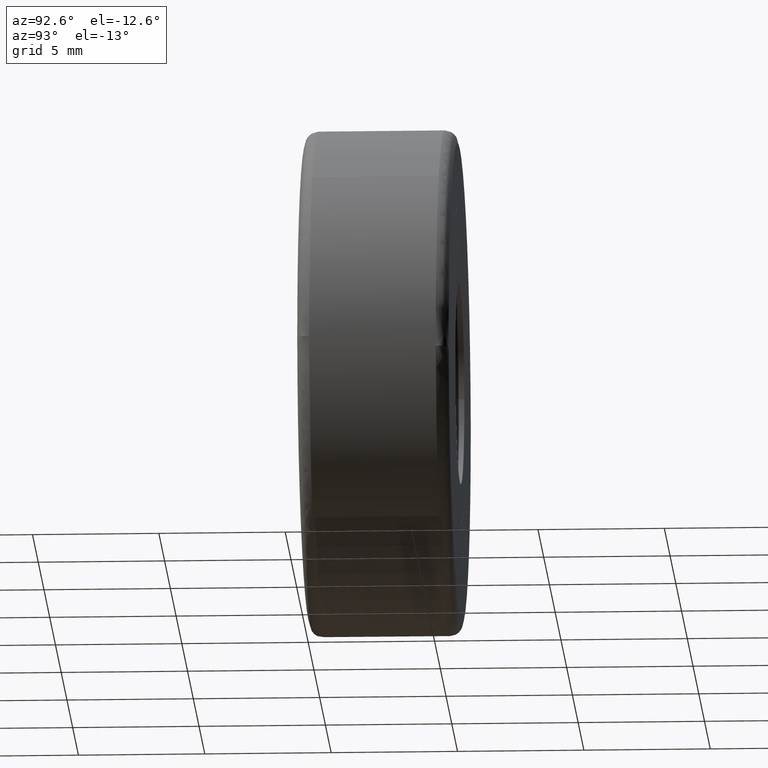
[diagram: clean part render]
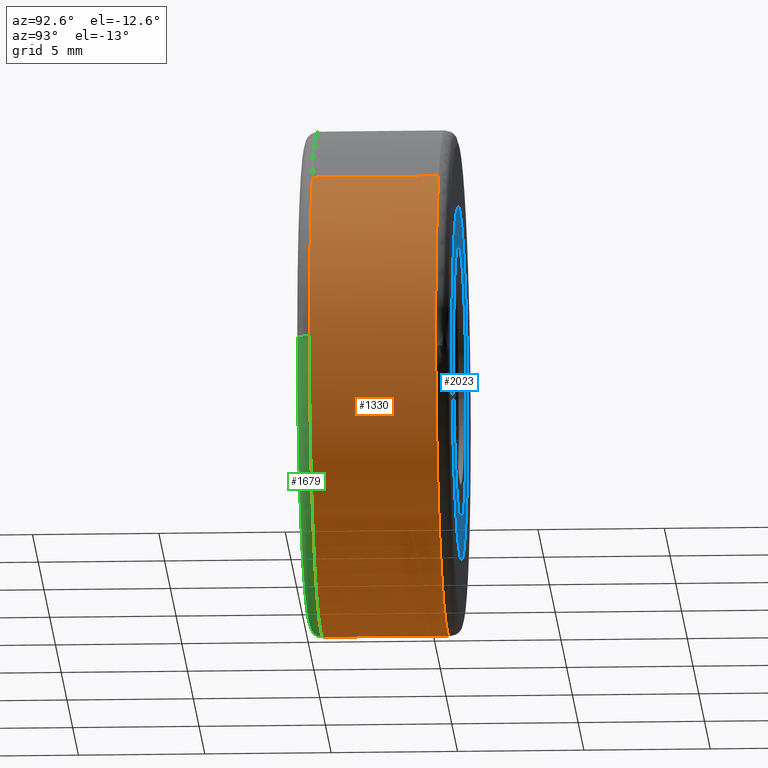
[diagram: same view with three faces highlighted in distinct colors, each labeled with its STEP entity id]
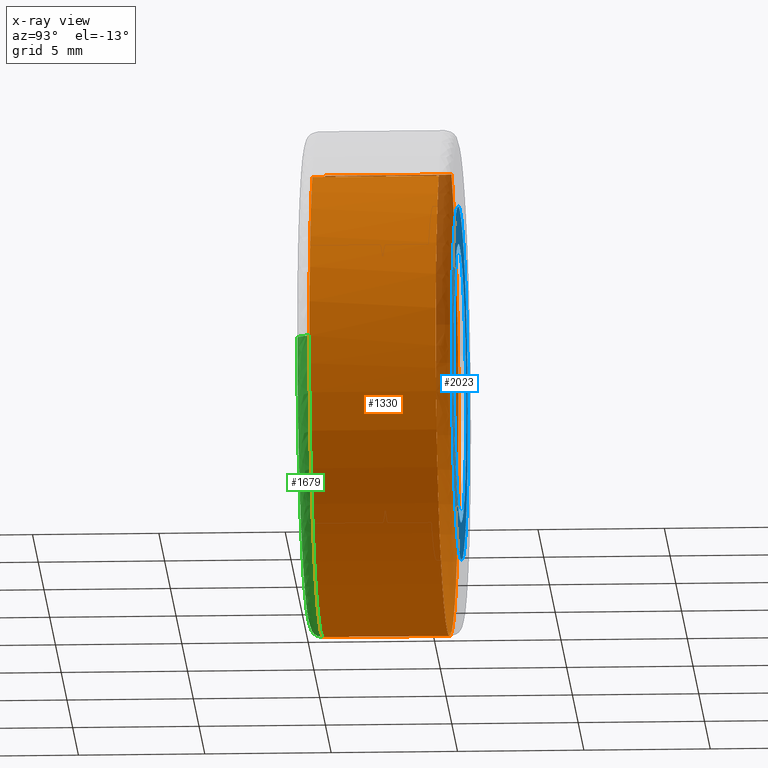
[diagram: x-ray of the same camera — body ghosted, the three highlighted faces saturated]
A machine part, auxiliary view with three faces highlighted in distinct colors.
The next image is the same camera in x-ray (body ghosted, the three faces saturated) — at least one of them is partly hidden behind the body in this view.
Their STEP definitions:

[orange] entity #1330 — the highlighted face is a freeform B-spline surface patch.
#1160=CARTESIAN_POINT('',(-3.715394144084544,5.625000000086769,9.284171818428513));
#1161=CARTESIAN_POINT('',(-5.410098529584944,5.625000000086770,8.605975111928055));
#1162=CARTESIAN_POINT('',(-6.755902076156600,5.625000000086769,7.372773368101238));
#1163=CARTESIAN_POINT('',(-14.128675444257837,5.625000000086769,0.616871291944638));
#1164=CARTESIAN_POINT('',(-7.372773368101238,5.625000000086769,-6.755902076156600));
#1165=CARTESIAN_POINT('',(-0.616871291944638,5.625000000086769,-14.128675444257837));
#1166=CARTESIAN_POINT('',(6.755902076156600,5.625000000086769,-7.372773368101238));
#1167=CARTESIAN_POINT('',(14.128675444257837,5.625000000086769,-0.616871291944638));
#1168=CARTESIAN_POINT('',(7.372773368101238,5.625000000086769,6.755902076156600));
#1169=CARTESIAN_POINT('',(-3.715394144084544,0.371874999957300,9.284171818428513));
#1170=CARTESIAN_POINT('',(-5.410098529584944,0.371874999957300,8.605975111928055));
#1171=CARTESIAN_POINT('',(-6.755902076156600,0.371874999957300,7.372773368101238));
#1172=CARTESIAN_POINT('',(-14.128675444257837,0.371874999957300,0.616871291944638));
#1173=CARTESIAN_POINT('',(-7.372773368101238,0.371874999957300,-6.755902076156600));
#1174=CARTESIAN_POINT('',(-0.616871291944638,0.371874999957300,-14.128675444257837));
#1175=CARTESIAN_POINT('',(6.755902076156600,0.371874999957300,-7.372773368101238));
#1176=CARTESIAN_POINT('',(14.128675444257837,0.371874999957300,-0.616871291944638));
#1177=CARTESIAN_POINT('',(7.372773368101238,0.371874999957300,6.755902076156600));
#1185=(BOUNDED_SURFACE()B_SPLINE_SURFACE(2,1,((#1160,#1169),(#1161,#1170),(#1162,#1171),(#1163,#1172),(#1164,#1173),(#1165,#1174),(#1166,#1175),(#1167,#1176),(#1168,#1177)),.UNSPECIFIED.,.F.,.F.,.U.)B_SPLINE_SURFACE_WITH_KNOTS((3,2,2,2,3),(2,2),(0.0,3.976450198781712,20.544992693705510,37.113535188629299,53.682077683553089),(0.0,5.253125000129469),.UNSPECIFIED.)GEOMETRIC_REPRESENTATION_ITEM()RATIONAL_B_SPLINE_SURFACE(((0.893152553776853,0.893152553776853),(0.929705627484771,0.929705627484771),(1.0,1.0),(0.707106781186548,0.707106781186548),(1.0,1.0),(0.707106781186548,0.707106781186548),(1.0,1.0),(0.707106781186548,0.707106781186548),(1.0,1.0)))REPRESENTATION_ITEM('')SURFACE());
#1186=CARTESIAN_POINT('',(-3.715388797554305,0.499999999997074,9.284173958030651));
#1187=VERTEX_POINT('',#1186);
#1188=CARTESIAN_POINT('',(-9.996841892832990,0.499999999960457,0.251300954433673));
#1189=VERTEX_POINT('',#1188);
#1190=CARTESIAN_POINT('',(-3.715388797554305,0.499999999997074,9.284173958030651));
#1191=CARTESIAN_POINT('',(-9.831298469713881,0.499999999987169,6.836677564113454));
#1192=CARTESIAN_POINT('',(-9.996841892832990,0.499999999960457,0.251300954433673));
#1200=(BOUNDED_CURVE()B_SPLINE_CURVE(2,(#1190,#1191,#1192),.UNSPECIFIED.,.F.,.U.)B_SPLINE_CURVE_WITH_KNOTS((3,3),(0.563083108910150,0.745579891769796),.UNSPECIFIED.)CURVE()GEOMETRIC_REPRESENTATION_ITEM()RATIONAL_B_SPLINE_CURVE((0.889485075190697,0.783578322988919,0.989826157681550))REPRESENTATION_ITEM(''));
#1201=EDGE_CURVE('',#1187,#1189,#1200,.T.);
#1202=ORIENTED_EDGE('',*,*,#1201,.F.);
#1203=CARTESIAN_POINT('',(-3.715388841877617,5.500000000006068,9.284173940292972));
#1204=VERTEX_POINT('',#1203);
#1205=CARTESIAN_POINT('',(-3.715388841877617,5.500000000006068,9.284173940292972));
#1206=CARTESIAN_POINT('',(-3.715388797554305,0.499999999997074,9.284173958030651));
#1207=QUASI_UNIFORM_CURVE('',1,(#1205,#1206),.UNSPECIFIED.,.F.,.U.);
#1208=EDGE_CURVE('',#1204,#1187,#1207,.T.);
#1209=ORIENTED_EDGE('',*,*,#1208,.F.);
#1210=CARTESIAN_POINT('',(-9.999210442038091,5.500000000083688,0.125660398838791));
#1211=VERTEX_POINT('',#1210);
#1212=CARTESIAN_POINT('',(-3.715388841877618,5.500000000006068,9.284173940292972));
#1213=CARTESIAN_POINT('',(-9.915295306013096,5.500000000027096,6.803063240981397));
#1214=CARTESIAN_POINT('',(-9.999210442038091,5.500000000083689,0.125660398838791));
#1222=(BOUNDED_CURVE()B_SPLINE_CURVE(2,(#1212,#1213,#1214),.UNSPECIFIED.,.F.,.U.)B_SPLINE_CURVE_WITH_KNOTS((3,3),(0.563083109660825,0.747784295921543),.UNSPECIFIED.)CURVE()GEOMETRIC_REPRESENTATION_ITEM()RATIONAL_B_SPLINE_CURVE((0.889485074319432,0.782299061388041,0.994854295643585))REPRESENTATION_ITEM(''));
#1223=EDGE_CURVE('',#1204,#1211,#1222,.T.);
#1224=ORIENTED_EDGE('',*,*,#1223,.T.);
#1225=CARTESIAN_POINT('',(0.0,5.500000000000000,-10.0));
#1226=VERTEX_POINT('',#1225);
#1227=CARTESIAN_POINT('',(-9.999210442038091,5.500000000083688,0.125660398838791));
#1228=CARTESIAN_POINT('',(-10.000000000000002,5.500000000000000,0.062832679924167));
#1229=CARTESIAN_POINT('',(-10.0,5.500000000000000,-1.746479E-016));
#1230=CARTESIAN_POINT('',(-10.000000000000002,5.500000000000001,-10.000000000000002));
#1231=CARTESIAN_POINT('',(0.0,5.500000000000000,-10.0));
#1239=(BOUNDED_CURVE()B_SPLINE_CURVE(2,(#1227,#1228,#1229,#1230,#1231),.UNSPECIFIED.,.F.,.U.)B_SPLINE_CURVE_WITH_KNOTS((3,2,3),(0.747784295921543,0.750000000000000,1.0),.UNSPECIFIED.)CURVE()GEOMETRIC_REPRESENTATION_ITEM()RATIONAL_B_SPLINE_CURVE((0.994854295643586,0.997404141202090,1.0,0.707106781186548,1.0))REPRESENTATION_ITEM(''));
#1240=EDGE_CURVE('',#1211,#1226,#1239,.T.);
#1241=ORIENTED_EDGE('',*,*,#1240,.T.);
#1242=CARTESIAN_POINT('',(9.975656738404027,5.500000000083660,-0.697332515758636));
#1243=VERTEX_POINT('',#1242);
#1244=CARTESIAN_POINT('',(0.0,5.500000000000000,-10.0));
#1245=CARTESIAN_POINT('',(9.325368472658289,5.499999999999999,-10.000000000000002));
#1246=CARTESIAN_POINT('',(9.975656738404027,5.500000000083660,-0.697332515758636));
#1254=(BOUNDED_CURVE()B_SPLINE_CURVE(2,(#1244,#1245,#1246),.UNSPECIFIED.,.F.,.U.)B_SPLINE_CURVE_WITH_KNOTS((3,3),(0.0,0.237833686534989),.UNSPECIFIED.)CURVE()GEOMETRIC_REPRESENTATION_ITEM()RATIONAL_B_SPLINE_CURVE((1.0,0.721360504033990,0.972879876386759))REPRESENTATION_ITEM(''));
#1255=EDGE_CURVE('',#1226,#1243,#1254,.T.);
#1256=ORIENTED_EDGE('',*,*,#1255,.T.);
#1257=CARTESIAN_POINT('',(7.372773731044375,5.500000000000000,6.755901680073629));
#1258=VERTEX_POINT('',#1257);
#1259=CARTESIAN_POINT('',(9.975656738404027,5.500000000083660,-0.697332515758636));
#1260=CARTESIAN_POINT('',(9.999999999999998,5.500000000000000,-0.349091158751351));
#1261=CARTESIAN_POINT('',(10.0,5.500000000000000,-1.746479E-016));
#1262=CARTESIAN_POINT('',(10.0,5.500000000000000,3.888786700063509));
#1263=CARTESIAN_POINT('',(7.372773731044375,5.500000000000000,6.755901680073629));
#1271=(BOUNDED_CURVE()B_SPLINE_CURVE(2,(#1259,#1260,#1261,#1262,#1263),.UNSPECIFIED.,.F.,.U.)B_SPLINE_CURVE_WITH_KNOTS((3,2,3),(0.237833686534989,0.250000000000000,0.368415192864190),.UNSPECIFIED.)CURVE()GEOMETRIC_REPRESENTATION_ITEM()RATIONAL_B_SPLINE_CURVE((0.972879876386759,0.985746277152558,1.0,0.861267972022367,0.853959782840026))REPRESENTATION_ITEM(''));
#1272=EDGE_CURVE('',#1243,#1258,#1271,.T.);
#1273=ORIENTED_EDGE('',*,*,#1272,.T.);
#1274=CARTESIAN_POINT('',(7.372773735578271,0.500000000000004,6.755901675125747));
#1275=VERTEX_POINT('',#1274);
#1276=CARTESIAN_POINT('',(7.372773731044375,5.500000000000000,6.755901680073629));
#1277=CARTESIAN_POINT('',(7.372773735578271,0.500000000000004,6.755901675125747));
#1278=QUASI_UNIFORM_CURVE('',1,(#1276,#1277),.UNSPECIFIED.,.F.,.U.);
#1279=EDGE_CURVE('',#1258,#1275,#1278,.T.);
#1280=ORIENTED_EDGE('',*,*,#1279,.T.);
#1281=CARTESIAN_POINT('',(9.996841892832990,0.499999999960457,-0.251300954433670));
#1282=VERTEX_POINT('',#1281);
#1283=CARTESIAN_POINT('',(9.996841892832990,0.499999999960457,-0.251300954433670));
#1284=CARTESIAN_POINT('',(9.999999999999998,0.500000000000000,-0.125670321234092));
#1285=CARTESIAN_POINT('',(10.0,0.500000000000000,-1.746479E-016));
#1286=CARTESIAN_POINT('',(10.0,0.500000000000000,3.888786692337593));
#1287=CARTESIAN_POINT('',(7.372773735578271,0.500000000000004,6.755901675125748));
#1295=(BOUNDED_CURVE()B_SPLINE_CURVE(2,(#1283,#1284,#1285,#1286,#1287),.UNSPECIFIED.,.F.,.U.)B_SPLINE_CURVE_WITH_KNOTS((3,2,3),(0.245579891769797,0.250000000000000,0.368415192661570),.UNSPECIFIED.)CURVE()GEOMETRIC_REPRESENTATION_ITEM()RATIONAL_B_SPLINE_CURVE((0.989826157681553,0.994821521091808,1.0,0.861267972259751,0.853959782865036))REPRESENTATION_ITEM(''));
#1296=EDGE_CURVE('',#1282,#1275,#1295,.T.);
#1297=ORIENTED_EDGE('',*,*,#1296,.F.);
#1298=CARTESIAN_POINT('',(0.0,0.500000000000000,-10.0));
#1299=VERTEX_POINT('',#1298);
#1300=CARTESIAN_POINT('',(0.0,0.500000000000000,-10.0));
#1301=CARTESIAN_POINT('',(9.751778761805912,0.500000000000000,-10.0));
#1302=CARTESIAN_POINT('',(9.996841892832990,0.499999999960457,-0.251300954433670));
#1310=(BOUNDED_CURVE()B_SPLINE_CURVE(2,(#1300,#1301,#1302),.UNSPECIFIED.,.F.,.U.)B_SPLINE_CURVE_WITH_KNOTS((3,3),(0.0,0.245579891769797),.UNSPECIFIED.)CURVE()GEOMETRIC_REPRESENTATION_ITEM()RATIONAL_B_SPLINE_CURVE((1.0,0.712285260094739,0.989826157681553))REPRESENTATION_ITEM(''));
#1311=EDGE_CURVE('',#1299,#1282,#1310,.T.);
#1312=ORIENTED_EDGE('',*,*,#1311,.F.);
#1313=CARTESIAN_POINT('',(-9.996841892832990,0.499999999960457,0.251300954433673));
#1314=CARTESIAN_POINT('',(-10.0,0.500000000000000,0.125670321234094));
#1315=CARTESIAN_POINT('',(-10.0,0.500000000000000,-1.746479E-016));
#1316=CARTESIAN_POINT('',(-10.000000000000002,0.500000000000000,-10.000000000000002));
#1317=CARTESIAN_POINT('',(0.0,0.500000000000000,-10.0));
#1325=(BOUNDED_CURVE()B_SPLINE_CURVE(2,(#1313,#1314,#1315,#1316,#1317),.UNSPECIFIED.,.F.,.U.)B_SPLINE_CURVE_WITH_KNOTS((3,2,3),(0.745579891769797,0.750000000000000,1.0),.UNSPECIFIED.)CURVE()GEOMETRIC_REPRESENTATION_ITEM()RATIONAL_B_SPLINE_CURVE((0.989826157681553,0.994821521091808,1.0,0.707106781186548,1.0))REPRESENTATION_ITEM(''));
#1326=EDGE_CURVE('',#1189,#1299,#1325,.T.);
#1327=ORIENTED_EDGE('',*,*,#1326,.F.);
#1328=EDGE_LOOP('',(#1202,#1209,#1224,#1241,#1256,#1273,#1280,#1297,#1312,#1327));
#1329=FACE_OUTER_BOUND('',#1328,.T.);
#1330=ADVANCED_FACE('',(#1329),#1185,.T.);

[blue] entity #2023 — the highlighted face is a freeform B-spline surface patch.
#278=CARTESIAN_POINT('',(6.968452338053793,6.0,-0.548426852248877));
#279=VERTEX_POINT('',#278);
#285=CARTESIAN_POINT('',(0.0,6.0,6.989999999999999));
#286=VERTEX_POINT('',#285);
#287=CARTESIAN_POINT('',(6.968452338053793,6.0,-0.548426852248877));
#288=CARTESIAN_POINT('',(6.990000000000001,6.000000000000001,-0.274636729372123));
#289=CARTESIAN_POINT('',(6.989999999999999,6.0,0.0));
#290=CARTESIAN_POINT('',(6.990000000000000,6.0,6.990000000000000));
#291=CARTESIAN_POINT('',(0.0,6.0,6.989999999999999));
#299=(BOUNDED_CURVE()B_SPLINE_CURVE(2,(#287,#288,#289,#290,#291),.UNSPECIFIED.,.F.,.U.)B_SPLINE_CURVE_WITH_KNOTS((3,2,3),(0.736331355414413,0.750000000000000,1.0),.UNSPECIFIED.)CURVE()GEOMETRIC_REPRESENTATION_ITEM()RATIONAL_B_SPLINE_CURVE((0.969723470496961,0.983986186762042,1.0,0.707106781186548,1.0))REPRESENTATION_ITEM(''));
#300=EDGE_CURVE('',#279,#286,#299,.T.);
#302=CARTESIAN_POINT('',(-6.968452338053793,6.0,0.548426852248877));
#303=VERTEX_POINT('',#302);
#304=CARTESIAN_POINT('',(0.0,6.0,6.989999999999999));
#305=CARTESIAN_POINT('',(-6.461491607956272,6.000000000000001,6.989999999999998));
#306=CARTESIAN_POINT('',(-6.968452338053794,6.000000000000002,0.548426852248877));
#314=(BOUNDED_CURVE()B_SPLINE_CURVE(2,(#304,#305,#306),.UNSPECIFIED.,.F.,.U.)B_SPLINE_CURVE_WITH_KNOTS((3,3),(0.0,0.236331355414413),.UNSPECIFIED.)CURVE()GEOMETRIC_REPRESENTATION_ITEM()RATIONAL_B_SPLINE_CURVE((1.0,0.723120594424506,0.969723470496961))REPRESENTATION_ITEM(''));
#315=EDGE_CURVE('',#286,#303,#314,.T.);
#361=CARTESIAN_POINT('',(0.0,6.0,-6.989999999999999));
#362=VERTEX_POINT('',#361);
#363=CARTESIAN_POINT('',(-6.968452338053794,6.000000000000002,0.548426852248877));
#364=CARTESIAN_POINT('',(-6.990000000000000,6.0,0.274636729372122));
#365=CARTESIAN_POINT('',(-6.989999999999999,6.0,0.0));
#366=CARTESIAN_POINT('',(-6.990000000000000,6.0,-6.990000000000000));
#367=CARTESIAN_POINT('',(0.0,6.0,-6.989999999999999));
#375=(BOUNDED_CURVE()B_SPLINE_CURVE(2,(#363,#364,#365,#366,#367),.UNSPECIFIED.,.F.,.U.)B_SPLINE_CURVE_WITH_KNOTS((3,2,3),(0.236331355414413,0.250000000000000,0.500000000000000),.UNSPECIFIED.)CURVE()GEOMETRIC_REPRESENTATION_ITEM()RATIONAL_B_SPLINE_CURVE((0.969723470496961,0.983986186762042,1.0,0.707106781186548,1.0))REPRESENTATION_ITEM(''));
#376=EDGE_CURVE('',#303,#362,#375,.T.);
#378=CARTESIAN_POINT('',(0.0,6.0,-6.989999999999999));
#379=CARTESIAN_POINT('',(6.461491607956269,6.0,-6.989999999999998));
#380=CARTESIAN_POINT('',(6.968452338053793,6.0,-0.548426852248877));
#388=(BOUNDED_CURVE()B_SPLINE_CURVE(2,(#378,#379,#380),.UNSPECIFIED.,.F.,.U.)B_SPLINE_CURVE_WITH_KNOTS((3,3),(0.500000000000000,0.736331355414413),.UNSPECIFIED.)CURVE()GEOMETRIC_REPRESENTATION_ITEM()RATIONAL_B_SPLINE_CURVE((1.0,0.723120594424506,0.969723470496961))REPRESENTATION_ITEM(''));
#389=EDGE_CURVE('',#362,#279,#388,.T.);
#443=CARTESIAN_POINT('',(-5.493015013794318,6.0,0.432303201686936));
#444=VERTEX_POINT('',#443);
#450=CARTESIAN_POINT('',(0.0,6.0,5.510000000000000));
#451=VERTEX_POINT('',#450);
#452=CARTESIAN_POINT('',(0.0,6.0,5.510000000000000));
#453=CARTESIAN_POINT('',(-5.093397576453792,6.0,5.510000000000001));
#454=CARTESIAN_POINT('',(-5.493015013794318,6.0,0.432303201686936));
#462=(BOUNDED_CURVE()B_SPLINE_CURVE(2,(#452,#453,#454),.UNSPECIFIED.,.F.,.U.)B_SPLINE_CURVE_WITH_KNOTS((3,3),(0.0,0.236331500854491),.UNSPECIFIED.)CURVE()GEOMETRIC_REPRESENTATION_ITEM()RATIONAL_B_SPLINE_CURVE((1.0,0.723120424030856,0.969723774019655))REPRESENTATION_ITEM(''));
#463=EDGE_CURVE('',#451,#444,#462,.T.);
#465=CARTESIAN_POINT('',(5.493015013794318,6.0,-0.432303201686936));
#466=VERTEX_POINT('',#465);
#467=CARTESIAN_POINT('',(5.493015013794319,6.000000000000001,-0.432303201686936));
#468=CARTESIAN_POINT('',(5.510000000000000,6.0,-0.216485266839095));
#469=CARTESIAN_POINT('',(5.510000000000000,6.0,0.0));
#470=CARTESIAN_POINT('',(5.510000000000000,6.0,5.510000000000000));
#471=CARTESIAN_POINT('',(0.0,6.0,5.510000000000000));
#479=(BOUNDED_CURVE()B_SPLINE_CURVE(2,(#467,#468,#469,#470,#471),.UNSPECIFIED.,.F.,.U.)B_SPLINE_CURVE_WITH_KNOTS((3,2,3),(0.736331500854491,0.750000000000000,1.0),.UNSPECIFIED.)CURVE()GEOMETRIC_REPRESENTATION_ITEM()RATIONAL_B_SPLINE_CURVE((0.969723774019655,0.983986357155692,1.0,0.707106781186548,1.0))REPRESENTATION_ITEM(''));
#480=EDGE_CURVE('',#466,#451,#479,.T.);
#556=CARTESIAN_POINT('',(0.0,6.0,-5.510000000000000));
#557=VERTEX_POINT('',#556);
#558=CARTESIAN_POINT('',(0.0,6.0,-5.510000000000000));
#559=CARTESIAN_POINT('',(5.093397576453791,6.000000000000001,-5.510000000000000));
#560=CARTESIAN_POINT('',(5.493015013794319,6.000000000000001,-0.432303201686936));
#568=(BOUNDED_CURVE()B_SPLINE_CURVE(2,(#558,#559,#560),.UNSPECIFIED.,.F.,.U.)B_SPLINE_CURVE_WITH_KNOTS((3,3),(0.500000000000000,0.736331500854491),.UNSPECIFIED.)CURVE()GEOMETRIC_REPRESENTATION_ITEM()RATIONAL_B_SPLINE_CURVE((1.0,0.723120424030856,0.969723774019655))REPRESENTATION_ITEM(''));
#569=EDGE_CURVE('',#557,#466,#568,.T.);
#571=CARTESIAN_POINT('',(-5.493015013794318,6.0,0.432303201686936));
#572=CARTESIAN_POINT('',(-5.509999999999999,6.0,0.216485266839095));
#573=CARTESIAN_POINT('',(-5.510000000000000,6.0,0.0));
#574=CARTESIAN_POINT('',(-5.510000000000000,6.0,-5.510000000000000));
#575=CARTESIAN_POINT('',(0.0,6.0,-5.510000000000000));
#583=(BOUNDED_CURVE()B_SPLINE_CURVE(2,(#571,#572,#573,#574,#575),.UNSPECIFIED.,.F.,.U.)B_SPLINE_CURVE_WITH_KNOTS((3,2,3),(0.236331500854491,0.250000000000000,0.500000000000000),.UNSPECIFIED.)CURVE()GEOMETRIC_REPRESENTATION_ITEM()RATIONAL_B_SPLINE_CURVE((0.969723774019655,0.983986357155692,1.0,0.707106781186548,1.0))REPRESENTATION_ITEM(''));
#584=EDGE_CURVE('',#444,#557,#583,.T.);
#2006=CARTESIAN_POINT('',(-7.686167190326455,6.0,7.688300791723428));
#2007=CARTESIAN_POINT('',(-7.686167190326455,6.0,-7.688300291759667));
#2008=CARTESIAN_POINT('',(7.686167690290215,6.0,7.688300791723428));
#2009=CARTESIAN_POINT('',(7.686167690290215,6.0,-7.688300291759667));
#2010=B_SPLINE_SURFACE_WITH_KNOTS('',1,1,((#2006,#2008),(#2007,#2009)),.UNSPECIFIED.,.F.,.F.,.U.,(2,2),(2,2),(0.0,15.376601083483100),(0.0,15.372334880616670),.UNSPECIFIED.);
#2011=ORIENTED_EDGE('',*,*,#300,.F.);
#2012=ORIENTED_EDGE('',*,*,#389,.F.);
#2013=ORIENTED_EDGE('',*,*,#376,.F.);
#2014=ORIENTED_EDGE('',*,*,#315,.F.);
#2015=EDGE_LOOP('',(#2011,#2012,#2013,#2014));
#2016=FACE_OUTER_BOUND('',#2015,.T.);
#2017=ORIENTED_EDGE('',*,*,#569,.T.);
#2018=ORIENTED_EDGE('',*,*,#480,.T.);
#2019=ORIENTED_EDGE('',*,*,#463,.T.);
#2020=ORIENTED_EDGE('',*,*,#584,.T.);
#2021=EDGE_LOOP('',(#2017,#2018,#2019,#2020));
#2022=FACE_BOUND('',#2021,.T.);
#2023=ADVANCED_FACE('',(#2016,#2022),#2010,.F.);

[green] entity #1679 — the highlighted face is a freeform B-spline surface patch.
#1188=CARTESIAN_POINT('',(-9.996841892832990,0.499999999960457,0.251300954433673));
#1189=VERTEX_POINT('',#1188);
#1281=CARTESIAN_POINT('',(9.996841892832990,0.499999999960457,-0.251300954433670));
#1282=VERTEX_POINT('',#1281);
#1298=CARTESIAN_POINT('',(0.0,0.500000000000000,-10.0));
#1299=VERTEX_POINT('',#1298);
#1300=CARTESIAN_POINT('',(0.0,0.500000000000000,-10.0));
#1301=CARTESIAN_POINT('',(9.751778761805912,0.500000000000000,-10.0));
#1302=CARTESIAN_POINT('',(9.996841892832990,0.499999999960457,-0.251300954433670));
#1310=(BOUNDED_CURVE()B_SPLINE_CURVE(2,(#1300,#1301,#1302),.UNSPECIFIED.,.F.,.U.)B_SPLINE_CURVE_WITH_KNOTS((3,3),(0.0,0.245579891769797),.UNSPECIFIED.)CURVE()GEOMETRIC_REPRESENTATION_ITEM()RATIONAL_B_SPLINE_CURVE((1.0,0.712285260094739,0.989826157681553))REPRESENTATION_ITEM(''));
#1311=EDGE_CURVE('',#1299,#1282,#1310,.T.);
#1313=CARTESIAN_POINT('',(-9.996841892832990,0.499999999960457,0.251300954433673));
#1314=CARTESIAN_POINT('',(-10.0,0.500000000000000,0.125670321234094));
#1315=CARTESIAN_POINT('',(-10.0,0.500000000000000,-1.746479E-016));
#1316=CARTESIAN_POINT('',(-10.000000000000002,0.500000000000000,-10.000000000000002));
#1317=CARTESIAN_POINT('',(0.0,0.500000000000000,-10.0));
#1325=(BOUNDED_CURVE()B_SPLINE_CURVE(2,(#1313,#1314,#1315,#1316,#1317),.UNSPECIFIED.,.F.,.U.)B_SPLINE_CURVE_WITH_KNOTS((3,2,3),(0.745579891769797,0.750000000000000,1.0),.UNSPECIFIED.)CURVE()GEOMETRIC_REPRESENTATION_ITEM()RATIONAL_B_SPLINE_CURVE((0.989826157681553,0.994821521091808,1.0,0.707106781186548,1.0))REPRESENTATION_ITEM(''));
#1326=EDGE_CURVE('',#1189,#1299,#1325,.T.);
#1592=CARTESIAN_POINT('',(-9.995625430102582,0.534862104168660,0.251270374951528));
#1593=CARTESIAN_POINT('',(-10.246895805054109,0.534862104168660,-9.744355055151049));
#1594=CARTESIAN_POINT('',(-0.251270374951531,0.534862104168660,-9.995625430102582));
#1595=CARTESIAN_POINT('',(9.744355055151047,0.534862104168660,-10.246895805054109));
#1596=CARTESIAN_POINT('',(9.995625430102582,0.534862104168660,-0.251270374951532));
#1597=CARTESIAN_POINT('',(-10.035699270198238,-0.038668130443539,0.252277752518545));
#1598=CARTESIAN_POINT('',(-10.287977022716786,-0.038668130443539,-9.783421517679690));
#1599=CARTESIAN_POINT('',(-0.252277752518548,-0.038668130443539,-10.035699270198238));
#1600=CARTESIAN_POINT('',(9.783421517679690,-0.038668130443539,-10.287977022716786));
#1601=CARTESIAN_POINT('',(10.035699270198238,-0.038668130443539,-0.252277752518548));
#1602=CARTESIAN_POINT('',(-9.462335213376226,0.001203842013125,0.237864507189491));
#1603=CARTESIAN_POINT('',(-9.700199720565717,0.001203842013125,-9.224470706186731));
#1604=CARTESIAN_POINT('',(-0.237864507189494,0.001203842013125,-9.462335213376226));
#1605=CARTESIAN_POINT('',(9.224470706186727,0.001203842013125,-9.700199720565719));
#1606=CARTESIAN_POINT('',(9.462335213376226,0.001203842013125,-0.237864507189494));
#1614=(BOUNDED_SURFACE()B_SPLINE_SURFACE(2,2,((#1592,#1597,#1602),(#1593,#1598,#1603),(#1594,#1599,#1604),(#1595,#1600,#1605),(#1596,#1601,#1606)),.UNSPECIFIED.,.F.,.F.,.U.)B_SPLINE_SURFACE_WITH_KNOTS((3,2,3),(3,3),(0.0,16.566526356761511,33.133052713523028),(0.0,0.911185477857158),.UNSPECIFIED.)GEOMETRIC_REPRESENTATION_ITEM()RATIONAL_B_SPLINE_SURFACE(((0.910892951205007,0.599412825927087,0.915966831065178),(0.644098582732087,0.423848873943235,0.647686357588140),(0.910892951205007,0.599412825927087,0.915966831065178),(0.644098582732087,0.423848873943235,0.647686357588140),(0.910892951205007,0.599412825927087,0.915966831065178)))REPRESENTATION_ITEM('')SURFACE());
#1615=CARTESIAN_POINT('',(-9.496999798713626,-7.667079E-016,0.238735906736713));
#1616=VERTEX_POINT('',#1615);
#1617=CARTESIAN_POINT('',(0.0,-1.720846E-015,-9.500000000000000));
#1618=VERTEX_POINT('',#1617);
#1619=CARTESIAN_POINT('',(-9.496999798713626,-7.667079E-016,0.238735906736713));
#1620=CARTESIAN_POINT('',(-9.500000000000000,-1.720846E-015,0.119386805183982));
#1621=CARTESIAN_POINT('',(-9.500000000000000,-1.720846E-015,-1.746479E-016));
#1622=CARTESIAN_POINT('',(-9.500000000000000,-1.720846E-015,-9.500000000000000));
#1623=CARTESIAN_POINT('',(0.0,-1.720846E-015,-9.500000000000000));
#1631=(BOUNDED_CURVE()B_SPLINE_CURVE(2,(#1619,#1620,#1621,#1622,#1623),.UNSPECIFIED.,.F.,.U.)B_SPLINE_CURVE_WITH_KNOTS((3,2,3),(0.745579891769370,0.750000000000000,1.0),.UNSPECIFIED.)CURVE()GEOMETRIC_REPRESENTATION_ITEM()RATIONAL_B_SPLINE_CURVE((0.989826157680588,0.994821521091308,1.0,0.707106781186548,1.0))REPRESENTATION_ITEM(''));
#1632=EDGE_CURVE('',#1616,#1618,#1631,.T.);
#1633=ORIENTED_EDGE('',*,*,#1632,.F.);
#1634=CARTESIAN_POINT('',(-9.996841892832990,0.499999999960457,0.251300954433673));
#1635=CARTESIAN_POINT('',(-9.996841892753935,1.045483E-009,0.251300954431388));
#1636=CARTESIAN_POINT('',(-9.496999798713626,-7.667079E-016,0.238735906736713));
#1644=(BOUNDED_CURVE()B_SPLINE_CURVE(2,(#1634,#1635,#1636),.UNSPECIFIED.,.F.,.U.)B_SPLINE_CURVE_WITH_KNOTS((3,3),(-1.723441281821918,-0.263586881091901),.UNSPECIFIED.)CURVE()GEOMETRIC_REPRESENTATION_ITEM()RATIONAL_B_SPLINE_CURVE((0.883897567081269,0.626638727648110,0.888510408286159))REPRESENTATION_ITEM(''));
#1645=EDGE_CURVE('',#1189,#1616,#1644,.T.);
#1646=ORIENTED_EDGE('',*,*,#1645,.F.);
#1647=ORIENTED_EDGE('',*,*,#1326,.T.);
#1648=ORIENTED_EDGE('',*,*,#1311,.T.);
#1649=CARTESIAN_POINT('',(9.496999798713626,-7.667079E-016,-0.238735906736713));
#1650=VERTEX_POINT('',#1649);
#1651=CARTESIAN_POINT('',(9.996841892832990,0.499999999960457,-0.251300954433670));
#1652=CARTESIAN_POINT('',(9.996841892753933,1.045483E-009,-0.251300954431387));
#1653=CARTESIAN_POINT('',(9.496999798713627,-7.667079E-016,-0.238735906736713));
#1661=(BOUNDED_CURVE()B_SPLINE_CURVE(2,(#1651,#1652,#1653),.UNSPECIFIED.,.F.,.U.)B_SPLINE_CURVE_WITH_KNOTS((3,3),(-1.723441281821918,-0.263586881091902),.UNSPECIFIED.)CURVE()GEOMETRIC_REPRESENTATION_ITEM()RATIONAL_B_SPLINE_CURVE((0.883897567081268,0.626638727648110,0.888510408286159))REPRESENTATION_ITEM(''));
#1662=EDGE_CURVE('',#1282,#1650,#1661,.T.);
#1663=ORIENTED_EDGE('',*,*,#1662,.T.);
#1664=CARTESIAN_POINT('',(0.0,-1.720846E-015,-9.500000000000000));
#1665=CARTESIAN_POINT('',(9.264189823693005,-1.720846E-015,-9.500000000000000));
#1666=CARTESIAN_POINT('',(9.496999798713626,-7.667079E-016,-0.238735906736713));
#1674=(BOUNDED_CURVE()B_SPLINE_CURVE(2,(#1664,#1665,#1666),.UNSPECIFIED.,.F.,.U.)B_SPLINE_CURVE_WITH_KNOTS((3,3),(0.0,0.245579891769370),.UNSPECIFIED.)CURVE()GEOMETRIC_REPRESENTATION_ITEM()RATIONAL_B_SPLINE_CURVE((1.0,0.712285260095240,0.989826157680588))REPRESENTATION_ITEM(''));
#1675=EDGE_CURVE('',#1618,#1650,#1674,.T.);
#1676=ORIENTED_EDGE('',*,*,#1675,.F.);
#1677=EDGE_LOOP('',(#1633,#1646,#1647,#1648,#1663,#1676));
#1678=FACE_OUTER_BOUND('',#1677,.T.);
#1679=ADVANCED_FACE('',(#1678),#1614,.T.);